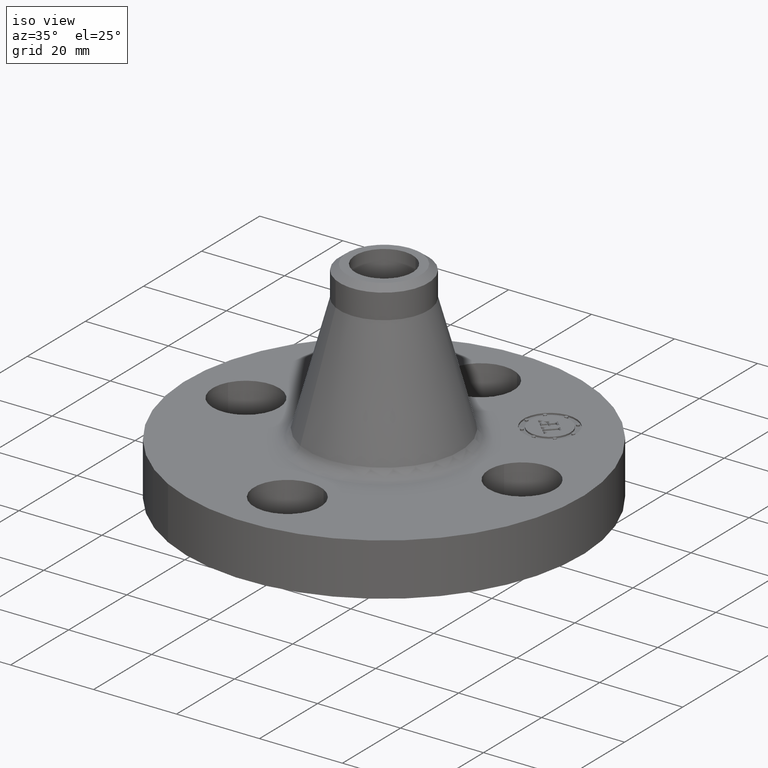
[diagram: clean part render]
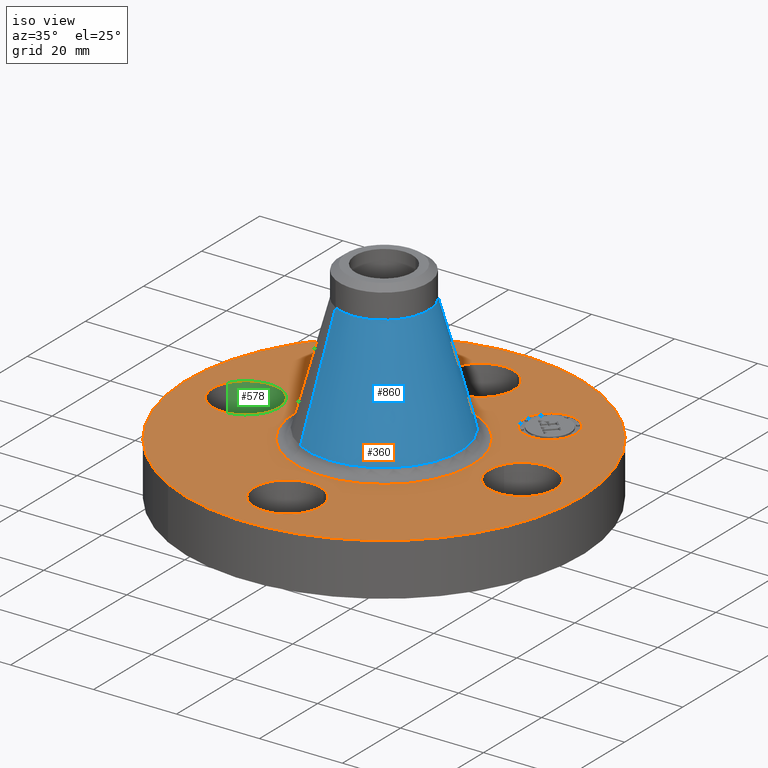
[diagram: same view with three faces highlighted in distinct colors, each labeled with its STEP entity id]
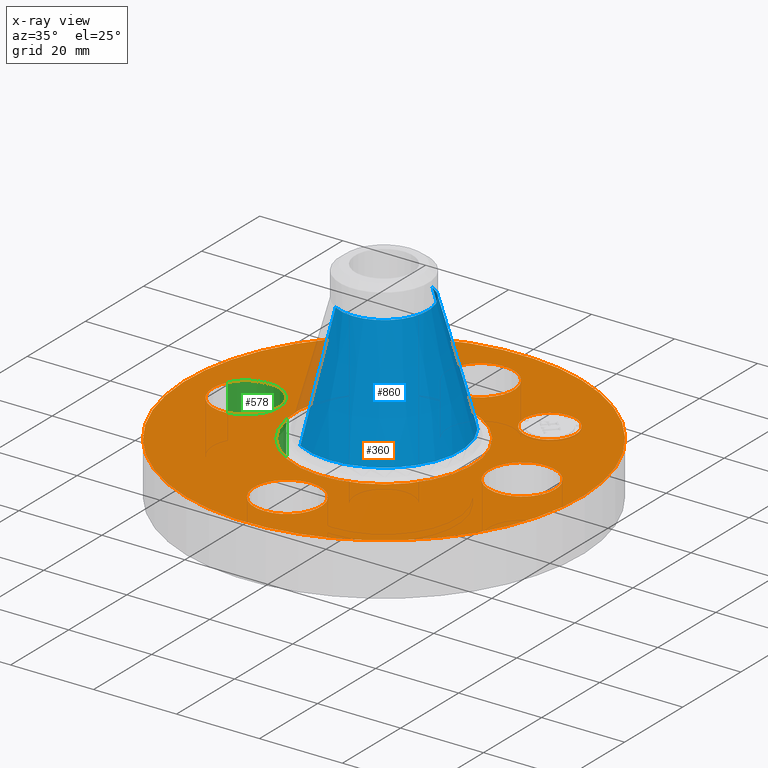
[diagram: x-ray of the same camera — body ghosted, the three highlighted faces saturated]
A machine part, iso view with three faces highlighted in distinct colors.
The next image is the same camera in x-ray (body ghosted, the three faces saturated) — at least one of them is partly hidden behind the body in this view.
Their STEP definitions:

[orange] entity #360 — the highlighted planar face has unit normal (0, 0, -1).
#119=AXIS2_PLACEMENT_3D('Circle Axis2P3D',#117,#118,$) ;
#246=AXIS2_PLACEMENT_3D('Plane Axis2P3D',#243,#244,#245) ;
#250=AXIS2_PLACEMENT_3D('Circle Axis2P3D',#248,#249,$) ;
#259=AXIS2_PLACEMENT_3D('Circle Axis2P3D',#257,#258,$) ;
#272=AXIS2_PLACEMENT_3D('Circle Axis2P3D',#270,#271,$) ;
#281=AXIS2_PLACEMENT_3D('Circle Axis2P3D',#279,#280,$) ;
#290=AXIS2_PLACEMENT_3D('Circle Axis2P3D',#288,#289,$) ;
#299=AXIS2_PLACEMENT_3D('Circle Axis2P3D',#297,#298,$) ;
#308=AXIS2_PLACEMENT_3D('Circle Axis2P3D',#306,#307,$) ;
#317=AXIS2_PLACEMENT_3D('Circle Axis2P3D',#315,#316,$) ;
#326=AXIS2_PLACEMENT_3D('Circle Axis2P3D',#324,#325,$) ;
#335=AXIS2_PLACEMENT_3D('Circle Axis2P3D',#333,#334,$) ;
#344=AXIS2_PLACEMENT_3D('Circle Axis2P3D',#342,#343,$) ;
#353=AXIS2_PLACEMENT_3D('Circle Axis2P3D',#351,#352,$) ;
#46=CARTESIAN_POINT('Vertex',(1.03356149301,0.151019044661,0.499999999987)) ;
#72=CARTESIAN_POINT('Vertex',(1.58643850697,-0.151019044665,0.500000000002)) ;
#76=CARTESIAN_POINT('Control Point',(1.03356149301,0.151019044661,0.500000000002)) ;
#77=CARTESIAN_POINT('Control Point',(1.05728350908,0.194441903798,0.500000000001)) ;
#78=CARTESIAN_POINT('Control Point',(1.08953158359,0.233206955974,0.500000000001)) ;
#79=CARTESIAN_POINT('Control Point',(1.12909312141,0.265074533342,0.5)) ;
#80=CARTESIAN_POINT('Control Point',(1.21857978084,0.311580534084,0.499999999998)) ;
#81=CARTESIAN_POINT('Control Point',(1.31900750771,0.320796932274,0.499999999997)) ;
#82=CARTESIAN_POINT('Control Point',(1.36951551943,0.315356480668,0.499999999996)) ;
#83=CARTESIAN_POINT('Control Point',(1.46567685163,0.28496456545,0.499999999995)) ;
#84=CARTESIAN_POINT('Control Point',(1.54320695598,0.220468416416,0.499999999993)) ;
#85=CARTESIAN_POINT('Control Point',(1.57507453335,0.180906878601,0.499999999992)) ;
#86=CARTESIAN_POINT('Control Point',(1.62158053409,0.0914202191715,0.499999999991)) ;
#87=CARTESIAN_POINT('Control Point',(1.63079693228,-0.00900750770346,0.49999999999)) ;
#88=CARTESIAN_POINT('Control Point',(1.62535648068,-0.059515519424,0.499999999989)) ;
#89=CARTESIAN_POINT('Control Point',(1.61016052307,-0.107596185523,0.499999999988)) ;
#90=CARTESIAN_POINT('Control Point',(1.58643850701,-0.151019044661,0.499999999987)) ;
#117=CARTESIAN_POINT('Axis2P3D Location',(1.31000000001,0.,0.499999999987)) ;
#243=CARTESIAN_POINT('Axis2P3D Location',(0.,1.87500000001,0.500000000002)) ;
#248=CARTESIAN_POINT('Axis2P3D Location',(8.39223703654E-016,1.0000469394E-011,0.500000000002)) ;
#252=CARTESIAN_POINT('Vertex',(0.898922884888,1.64546730355,0.500000000004)) ;
#254=CARTESIAN_POINT('Vertex',(-0.898922884888,-1.64546730355,0.500000000004)) ;
#257=CARTESIAN_POINT('Axis2P3D Location',(-8.39223703654E-016,9.9999099115E-012,0.500000000002)) ;
#270=CARTESIAN_POINT('Axis2P3D Location',(-1.39870617276E-016,1.00001896527E-011,0.500000000002)) ;
#274=CARTESIAN_POINT('Vertex',(-0.403524524561,-0.738646687619,0.500000000002)) ;
#276=CARTESIAN_POINT('Vertex',(0.403524524561,0.738646687619,0.500000000002)) ;
#279=CARTESIAN_POINT('Axis2P3D Location',(1.39870617276E-016,1.00001896527E-011,0.500000000002)) ;
#288=CARTESIAN_POINT('Axis2P3D Location',(1.28118338336E-011,-1.31000000004,0.500000000002)) ;
#292=CARTESIAN_POINT('Vertex',(-0.151019044675,-1.58643850704,0.500000000002)) ;
#294=CARTESIAN_POINT('Vertex',(0.151019044661,-1.03356149301,0.499999999987)) ;
#297=CARTESIAN_POINT('Axis2P3D Location',(-4.36654037512E-011,-1.31000000001,0.500000000002)) ;
#306=CARTESIAN_POINT('Axis2P3D Location',(-1.31000000001,1.00001896527E-011,0.500000000002)) ;
#310=CARTESIAN_POINT('Vertex',(-1.58643850697,0.151019044685,0.500000000002)) ;
#312=CARTESIAN_POINT('Vertex',(-1.03356149301,-0.151019044661,0.499999999987)) ;
#315=CARTESIAN_POINT('Axis2P3D Location',(-1.31000000004,-4.64767681908E-011,0.500000000002)) ;
#324=CARTESIAN_POINT('Axis2P3D Location',(-4.36654037512E-011,1.31000000001,0.500000000002)) ;
#328=CARTESIAN_POINT('Vertex',(0.151019044675,1.58643850698,0.500000000002)) ;
#330=CARTESIAN_POINT('Vertex',(-0.151019044661,1.03356149301,0.499999999987)) ;
#333=CARTESIAN_POINT('Axis2P3D Location',(1.28118338336E-011,1.30999999997,0.500000000002)) ;
#342=CARTESIAN_POINT('Axis2P3D Location',(0.926309883353,0.926309883363,0.500000000002)) ;
#346=CARTESIAN_POINT('Vertex',(0.751300955001,1.10131881171,0.500000000002)) ;
#348=CARTESIAN_POINT('Vertex',(1.1013188117,0.751300955011,0.500000000002)) ;
#351=CARTESIAN_POINT('Axis2P3D Location',(0.926309883353,0.926309883363,0.500000000002)) ;
#118=DIRECTION('Axis2P3D Direction',(0.,-0.,-0.0393700787402)) ;
#244=DIRECTION('Axis2P3D Direction',(0.,0.,-0.0393700787402)) ;
#245=DIRECTION('Axis2P3D XDirection',(0.0393700787402,0.,0.)) ;
#249=DIRECTION('Axis2P3D Direction',(0.,0.,-0.0393700787402)) ;
#258=DIRECTION('Axis2P3D Direction',(0.,0.,-0.0393700787402)) ;
#271=DIRECTION('Axis2P3D Direction',(0.,0.,-0.0393700787402)) ;
#280=DIRECTION('Axis2P3D Direction',(0.,0.,-0.0393700787402)) ;
#289=DIRECTION('Axis2P3D Direction',(0.,0.,-0.0393700787402)) ;
#298=DIRECTION('Axis2P3D Direction',(0.,0.,-0.0393700787402)) ;
#307=DIRECTION('Axis2P3D Direction',(0.,0.,-0.0393700787402)) ;
#316=DIRECTION('Axis2P3D Direction',(0.,0.,-0.0393700787402)) ;
#325=DIRECTION('Axis2P3D Direction',(0.,0.,-0.0393700787402)) ;
#334=DIRECTION('Axis2P3D Direction',(0.,0.,-0.0393700787402)) ;
#343=DIRECTION('Axis2P3D Direction',(0.,0.,-0.0393700787402)) ;
#352=DIRECTION('Axis2P3D Direction',(0.,0.,-0.0393700787402)) ;
#263=ORIENTED_EDGE('',*,*,#256,.F.) ;
#264=ORIENTED_EDGE('',*,*,#261,.F.) ;
#267=ORIENTED_EDGE('',*,*,#91,.T.) ;
#268=ORIENTED_EDGE('',*,*,#121,.T.) ;
#285=ORIENTED_EDGE('',*,*,#278,.T.) ;
#286=ORIENTED_EDGE('',*,*,#283,.T.) ;
#303=ORIENTED_EDGE('',*,*,#296,.T.) ;
#304=ORIENTED_EDGE('',*,*,#301,.T.) ;
#321=ORIENTED_EDGE('',*,*,#314,.T.) ;
#322=ORIENTED_EDGE('',*,*,#319,.T.) ;
#339=ORIENTED_EDGE('',*,*,#332,.T.) ;
#340=ORIENTED_EDGE('',*,*,#337,.T.) ;
#357=ORIENTED_EDGE('',*,*,#350,.T.) ;
#358=ORIENTED_EDGE('',*,*,#355,.T.) ;
#269=FACE_BOUND('',#266,.T.) ;
#287=FACE_BOUND('',#284,.T.) ;
#305=FACE_BOUND('',#302,.T.) ;
#323=FACE_BOUND('',#320,.T.) ;
#341=FACE_BOUND('',#338,.T.) ;
#359=FACE_BOUND('',#356,.T.) ;
#360=ADVANCED_FACE('PartBody',(#265,#269,#287,#305,#323,#341,#359),#247,.F.) ;
#75=B_SPLINE_CURVE_WITH_KNOTS('',5,(#76,#77,#78,#79,#80,#81,#82,#83,#84,#85,#86,#87,#88,#89,#90),.UNSPECIFIED.,.F.,.U.,(6,3,3,3,6),(-12.5679414107,-6.28397070536,8.881784197E-016,6.28397070536,12.5679414107),.UNSPECIFIED.) ;
#120=CIRCLE('generated circle',#119,0.315000000001) ;
#251=CIRCLE('generated circle',#250,1.87500000001) ;
#260=CIRCLE('generated circle',#259,1.87500000001) ;
#273=CIRCLE('generated circle',#272,0.841683414989) ;
#282=CIRCLE('generated circle',#281,0.841683414989) ;
#291=CIRCLE('generated circle',#290,0.315000000013) ;
#300=CIRCLE('generated circle',#299,0.315000000013) ;
#309=CIRCLE('generated circle',#308,0.314999999981) ;
#318=CIRCLE('generated circle',#317,0.314999999981) ;
#327=CIRCLE('generated circle',#326,0.315000000013) ;
#336=CIRCLE('generated circle',#335,0.315000000013) ;
#345=CIRCLE('generated circle',#344,0.247500000012) ;
#354=CIRCLE('generated circle',#353,0.247500000012) ;
#91=EDGE_CURVE('',#47,#73,#75,.T.) ;
#121=EDGE_CURVE('',#73,#47,#120,.T.) ;
#256=EDGE_CURVE('',#253,#255,#251,.T.) ;
#261=EDGE_CURVE('',#255,#253,#260,.T.) ;
#278=EDGE_CURVE('',#275,#277,#273,.T.) ;
#283=EDGE_CURVE('',#277,#275,#282,.T.) ;
#296=EDGE_CURVE('',#293,#295,#291,.T.) ;
#301=EDGE_CURVE('',#295,#293,#300,.T.) ;
#314=EDGE_CURVE('',#311,#313,#309,.T.) ;
#319=EDGE_CURVE('',#313,#311,#318,.T.) ;
#332=EDGE_CURVE('',#329,#331,#327,.T.) ;
#337=EDGE_CURVE('',#331,#329,#336,.T.) ;
#350=EDGE_CURVE('',#347,#349,#345,.T.) ;
#355=EDGE_CURVE('',#349,#347,#354,.T.) ;
#262=EDGE_LOOP('',(#263,#264)) ;
#266=EDGE_LOOP('',(#267,#268)) ;
#284=EDGE_LOOP('',(#285,#286)) ;
#302=EDGE_LOOP('',(#303,#304)) ;
#320=EDGE_LOOP('',(#321,#322)) ;
#338=EDGE_LOOP('',(#339,#340)) ;
#356=EDGE_LOOP('',(#357,#358)) ;
#265=FACE_OUTER_BOUND('',#262,.T.) ;
#247=PLANE('',#246) ;
#47=VERTEX_POINT('',#46) ;
#73=VERTEX_POINT('',#72) ;
#253=VERTEX_POINT('',#252) ;
#255=VERTEX_POINT('',#254) ;
#275=VERTEX_POINT('',#274) ;
#277=VERTEX_POINT('',#276) ;
#293=VERTEX_POINT('',#292) ;
#295=VERTEX_POINT('',#294) ;
#311=VERTEX_POINT('',#310) ;
#313=VERTEX_POINT('',#312) ;
#329=VERTEX_POINT('',#328) ;
#331=VERTEX_POINT('',#330) ;
#347=VERTEX_POINT('',#346) ;
#349=VERTEX_POINT('',#348) ;

[blue] entity #860 — the highlighted conical surface has half-angle 15.238 deg.
#679=AXIS2_PLACEMENT_3D('Circle Axis2P3D',#677,#678,$) ;
#847=AXIS2_PLACEMENT_3D('Cone Axis2P3D',#844,#845,#846) ;
#851=AXIS2_PLACEMENT_3D('Circle Axis2P3D',#849,#850,$) ;
#643=CARTESIAN_POINT('Vertex',(-0.348016189981,-0.637039362717,0.5884599252)) ;
#650=CARTESIAN_POINT('Vertex',(0.348016189981,0.637039362717,0.5884599252)) ;
#677=CARTESIAN_POINT('Axis2P3D Location',(0.,0.,0.5884599252)) ;
#811=CARTESIAN_POINT('Line Origine',(-0.274687458098,-0.502812019356,1.14993091671)) ;
#815=CARTESIAN_POINT('Vertex',(-0.201358726215,-0.368584675996,1.71140190821)) ;
#822=CARTESIAN_POINT('Vertex',(0.201358726215,0.368584675996,1.71140190821)) ;
#825=CARTESIAN_POINT('Line Origine',(0.274687458098,0.502812019356,1.14993091671)) ;
#844=CARTESIAN_POINT('Axis2P3D Location',(0.,0.,1.71140190821)) ;
#849=CARTESIAN_POINT('Axis2P3D Location',(0.,0.,1.71140190821)) ;
#678=DIRECTION('Axis2P3D Direction',(-0.,0.,-0.0393700787402)) ;
#812=DIRECTION('Vector Direction',(-0.00496099650577,-0.00908104319126,-0.0379858693231)) ;
#826=DIRECTION('Vector Direction',(0.00496099650577,0.00908104319126,-0.0379858693231)) ;
#845=DIRECTION('Axis2P3D Direction',(0.,0.,-0.0393700787402)) ;
#846=DIRECTION('Axis2P3D XDirection',(0.0188750212049,0.0345504945626,0.)) ;
#850=DIRECTION('Axis2P3D Direction',(-0.,0.,-0.0393700787402)) ;
#813=VECTOR('Line Direction',#812,0.0393700787402) ;
#827=VECTOR('Line Direction',#826,0.0393700787402) ;
#855=ORIENTED_EDGE('',*,*,#681,.F.) ;
#856=ORIENTED_EDGE('',*,*,#829,.T.) ;
#857=ORIENTED_EDGE('',*,*,#853,.T.) ;
#858=ORIENTED_EDGE('',*,*,#817,.F.) ;
#860=ADVANCED_FACE('PartBody',(#859),#848,.T.) ;
#680=CIRCLE('generated circle',#679,0.725902485283) ;
#852=CIRCLE('generated circle',#851,0.420000000002) ;
#848=CONICAL_SURFACE('Cone',#847,0.420000000002,0.265958259364) ;
#681=EDGE_CURVE('',#651,#644,#680,.T.) ;
#817=EDGE_CURVE('',#644,#816,#814,.F.) ;
#829=EDGE_CURVE('',#651,#823,#828,.F.) ;
#853=EDGE_CURVE('',#823,#816,#852,.T.) ;
#854=EDGE_LOOP('',(#855,#856,#857,#858)) ;
#859=FACE_OUTER_BOUND('',#854,.T.) ;
#814=LINE('Line',#811,#813) ;
#828=LINE('Line',#825,#827) ;
#644=VERTEX_POINT('',#643) ;
#651=VERTEX_POINT('',#650) ;
#816=VERTEX_POINT('',#815) ;
#823=VERTEX_POINT('',#822) ;

[green] entity #578 — the highlighted cylindrical surface (partial cylindrical patch) has radius 8.001 mm, axis along (0, 0, -1).
#210=AXIS2_PLACEMENT_3D('Circle Axis2P3D',#208,#209,$) ;
#308=AXIS2_PLACEMENT_3D('Circle Axis2P3D',#306,#307,$) ;
#570=AXIS2_PLACEMENT_3D('Cylinder Axis2P3D',#567,#568,#569) ;
#203=CARTESIAN_POINT('Vertex',(-1.03356149304,-0.151019044693,0.)) ;
#205=CARTESIAN_POINT('Vertex',(-1.58643850697,0.151019044657,0.)) ;
#208=CARTESIAN_POINT('Axis2P3D Location',(-1.30999999998,3.83574187286E-011,0.)) ;
#306=CARTESIAN_POINT('Axis2P3D Location',(-1.31000000001,1.00001896527E-011,0.500000000002)) ;
#310=CARTESIAN_POINT('Vertex',(-1.58643850697,0.151019044685,0.500000000002)) ;
#312=CARTESIAN_POINT('Vertex',(-1.03356149301,-0.151019044661,0.499999999987)) ;
#543=CARTESIAN_POINT('Line Origine',(-1.03356149301,-0.151019044661,0.250000000001)) ;
#548=CARTESIAN_POINT('Line Origine',(-1.58643850701,0.151019044661,0.250000000001)) ;
#567=CARTESIAN_POINT('Axis2P3D Location',(-1.31000000001,-1.60428730689E-016,0.496062992128)) ;
#209=DIRECTION('Axis2P3D Direction',(0.,0.,-0.0393700787402)) ;
#307=DIRECTION('Axis2P3D Direction',(0.,0.,-0.0393700787402)) ;
#544=DIRECTION('Vector Direction',(0.,0.,-0.0393700787402)) ;
#549=DIRECTION('Vector Direction',(0.,0.,-0.0393700787402)) ;
#568=DIRECTION('Axis2P3D Direction',(0.,0.,-0.0393700787402)) ;
#569=DIRECTION('Axis2P3D XDirection',(-0.0345504945626,0.0188750212049,0.)) ;
#545=VECTOR('Line Direction',#544,0.0393700787402) ;
#550=VECTOR('Line Direction',#549,0.0393700787402) ;
#573=ORIENTED_EDGE('',*,*,#552,.F.) ;
#574=ORIENTED_EDGE('',*,*,#212,.T.) ;
#575=ORIENTED_EDGE('',*,*,#547,.T.) ;
#576=ORIENTED_EDGE('',*,*,#314,.F.) ;
#578=ADVANCED_FACE('PartBody',(#577),#571,.F.) ;
#211=CIRCLE('generated circle',#210,0.314999999981) ;
#309=CIRCLE('generated circle',#308,0.314999999981) ;
#571=CYLINDRICAL_SURFACE('generated cylinder',#570,0.315000000001) ;
#212=EDGE_CURVE('',#206,#204,#211,.T.) ;
#314=EDGE_CURVE('',#311,#313,#309,.T.) ;
#547=EDGE_CURVE('',#204,#313,#546,.F.) ;
#552=EDGE_CURVE('',#206,#311,#551,.F.) ;
#572=EDGE_LOOP('',(#573,#574,#575,#576)) ;
#577=FACE_OUTER_BOUND('',#572,.T.) ;
#546=LINE('Line',#543,#545) ;
#551=LINE('Line',#548,#550) ;
#204=VERTEX_POINT('',#203) ;
#206=VERTEX_POINT('',#205) ;
#311=VERTEX_POINT('',#310) ;
#313=VERTEX_POINT('',#312) ;